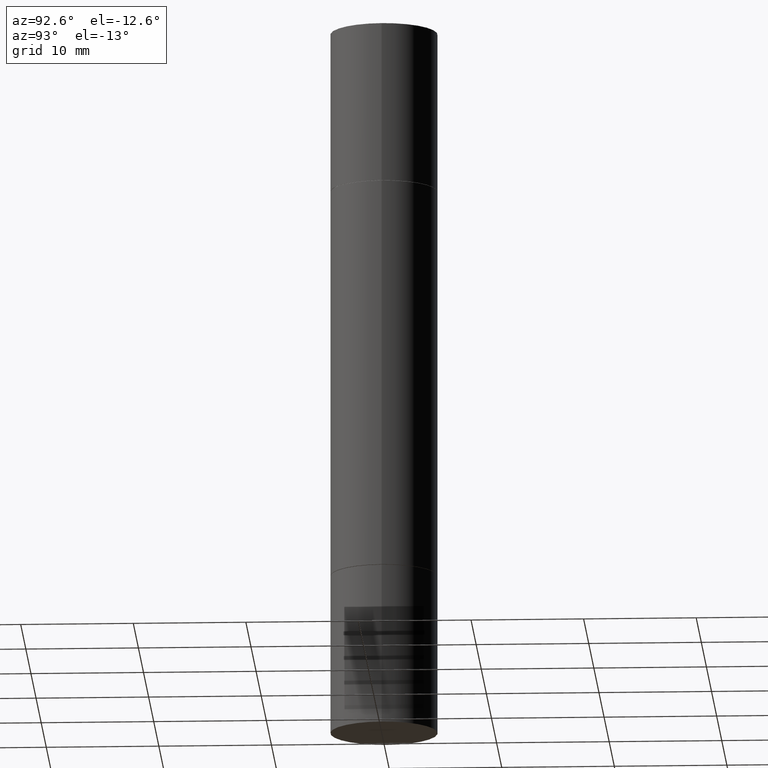
[diagram: clean part render]
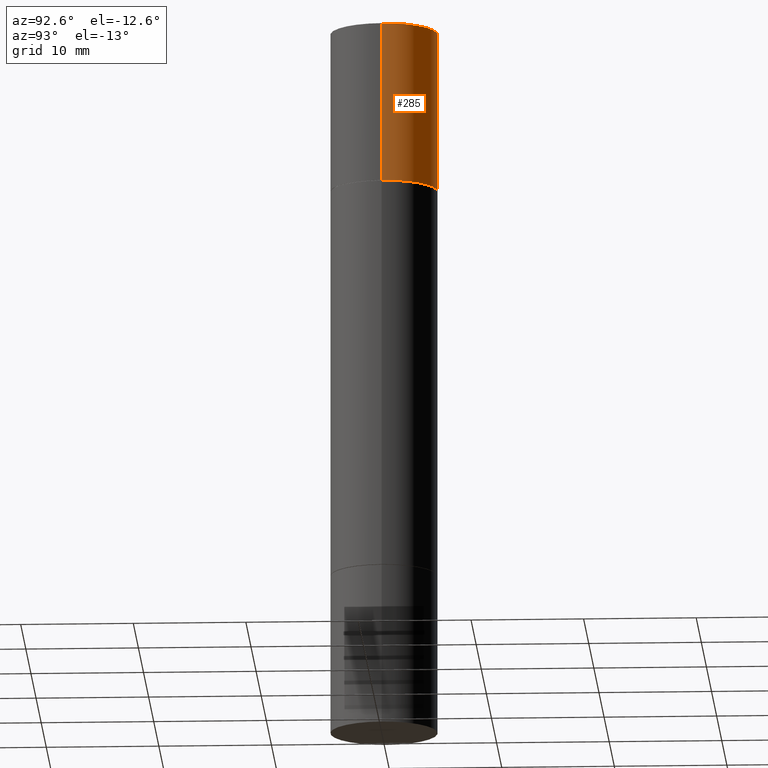
[diagram: same view with one face highlighted and labeled with its STEP entity id]
A machine part, auxiliary view. The second image highlights one B-rep face of the part: STEP entity #285.
In plain terms, the highlighted cylindrical surface (partial cylindrical patch) has radius 4.7625 mm, axis along (-0, -0, -1).
Its self-contained STEP definition (entity closure, byte-faithful):
#22 = VERTEX_POINT ( 'NONE', #559 ) ;
#46 = CARTESIAN_POINT ( 'NONE',  ( -0.1875000000000000278, 3.066025098218802702E-16, 5.463695987328561936E-16 ) ) ;
#101 = EDGE_LOOP ( 'NONE', ( #331, #465, #660, #464 ) ) ;
#115 = CARTESIAN_POINT ( 'NONE',  ( 6.113672015462842613E-29, 1.761340885760521790E-18, 5.463695987328526437E-16 ) ) ;
#140 = CIRCLE ( 'NONE', #647, 0.1875000000000000278 ) ;
#163 = VECTOR ( 'NONE', #507, 39.37007874015748143 ) ;
#181 = EDGE_CURVE ( 'NONE', #308, #623, #532, .T. ) ;
#202 = DIRECTION ( 'NONE',  ( 1.000000000000000000, -6.982962677686266711E-15, 0.000000000000000000 ) ) ;
#207 = FACE_OUTER_BOUND ( 'NONE', #101, .T. ) ;
#227 = CARTESIAN_POINT ( 'NONE',  ( -0.1875000000000000278, -7.444121313411457895E-15, -2.499999999999999556 ) ) ;
#229 = CARTESIAN_POINT ( 'NONE',  ( 0.1875000000000000278, -3.270548572472500038E-15, -0.5619999999999996110 ) ) ;
#267 = DIRECTION ( 'NONE',  ( 1.000000000000000000, -6.982962677686266711E-15, 0.000000000000000000 ) ) ;
#270 = EDGE_CURVE ( 'NONE', #22, #619, #301, .T. ) ;
#284 = DIRECTION ( 'NONE',  ( 1.000000000000000000, -6.982962677686265922E-15, 0.000000000000000000 ) ) ;
#285 = ADVANCED_FACE ( 'NONE', ( #207 ), #517, .T. ) ;
#289 = CARTESIAN_POINT ( 'NONE',  ( 0.1875000000000000278, -1.003977019005979665E-14, -2.499999999999999556 ) ) ;
#301 = LINE ( 'NONE', #289, #163 ) ;
#303 = CIRCLE ( 'NONE', #567, 0.1875000000000000278 ) ;
#308 = VERTEX_POINT ( 'NONE', #46 ) ;
#326 = DIRECTION ( 'NONE',  ( -2.445468806185136877E-29, -3.492890411551753071E-15, -1.000000000000000000 ) ) ;
#331 = ORIENTED_EDGE ( 'NONE', *, *, #181, .F. ) ;
#362 = DIRECTION ( 'NONE',  ( -2.445468806185136597E-29, -3.492890411551752677E-15, -1.000000000000000000 ) ) ;
#378 = DIRECTION ( 'NONE',  ( 2.445468806185136597E-29, 3.492890411551752677E-15, 1.000000000000000000 ) ) ;
#428 = EDGE_CURVE ( 'NONE', #619, #623, #303, .T. ) ;
#431 = VECTOR ( 'NONE', #326, 39.37007874015748143 ) ;
#464 = ORIENTED_EDGE ( 'NONE', *, *, #428, .T. ) ;
#465 = ORIENTED_EDGE ( 'NONE', *, *, #605, .F. ) ;
#498 = CARTESIAN_POINT ( 'NONE',  ( -0.1875000000000000278, 3.066025098218802702E-16, -0.5619999999999996110 ) ) ;
#507 = DIRECTION ( 'NONE',  ( -2.445468806185136877E-29, -3.492890411551753071E-15, -1.000000000000000000 ) ) ;
#517 = CYLINDRICAL_SURFACE ( 'NONE', #612, 0.1875000000000000278 ) ;
#532 = LINE ( 'NONE', #227, #431 ) ;
#535 = DIRECTION ( 'NONE',  ( 2.445468806185136597E-29, 3.492890411551752677E-15, 1.000000000000000000 ) ) ;
#559 = CARTESIAN_POINT ( 'NONE',  ( 0.1875000000000000278, -1.307544161180414563E-15, 5.463695987328526437E-16 ) ) ;
#567 = AXIS2_PLACEMENT_3D ( 'NONE', #680, #378, #267 ) ;
#570 = CARTESIAN_POINT ( 'NONE',  ( 0.000000000000000000, -8.730464687993621641E-15, -2.499999999999999556 ) ) ;
#605 = EDGE_CURVE ( 'NONE', #22, #308, #140, .T. ) ;
#612 = AXIS2_PLACEMENT_3D ( 'NONE', #570, #362, #202 ) ;
#619 = VERTEX_POINT ( 'NONE', #229 ) ;
#623 = VERTEX_POINT ( 'NONE', #498 ) ;
#647 = AXIS2_PLACEMENT_3D ( 'NONE', #115, #535, #284 ) ;
#660 = ORIENTED_EDGE ( 'NONE', *, *, #270, .T. ) ;
#680 = CARTESIAN_POINT ( 'NONE',  ( 4.739318546386794397E-29, -1.961243070406324635E-15, -0.5619999999999996110 ) ) ;